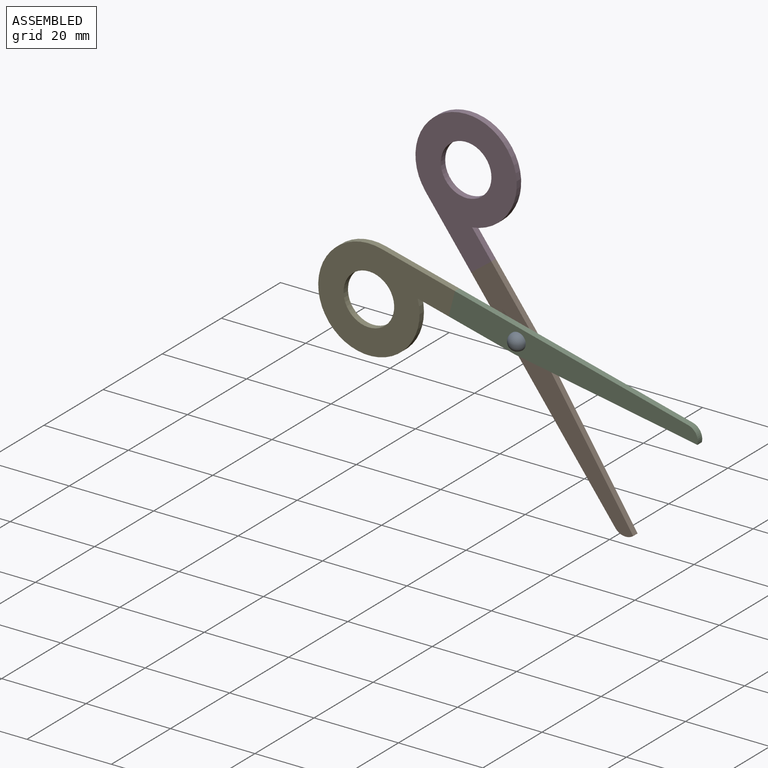
[diagram: assembled view]
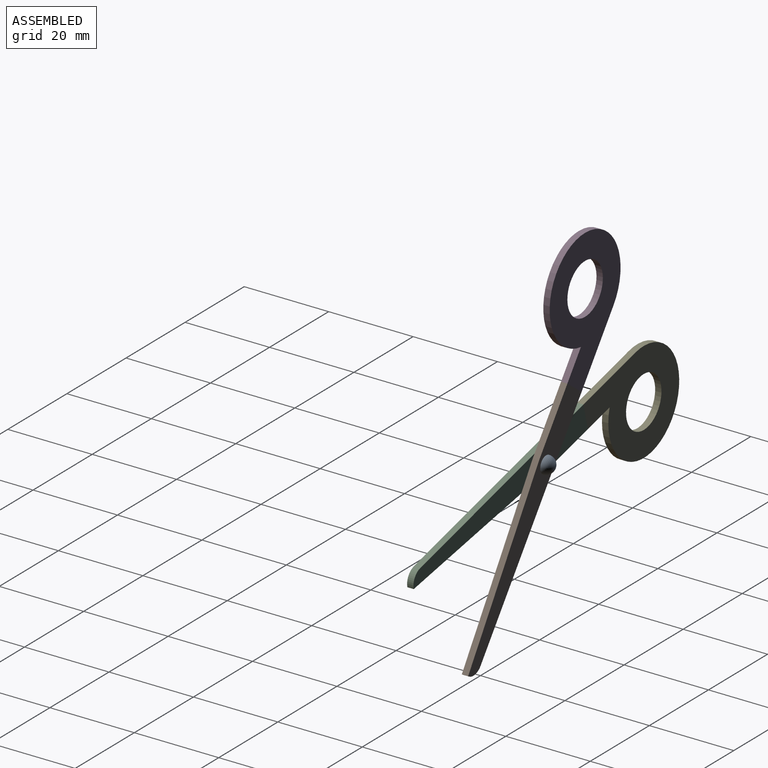
[diagram: assembled view, second angle]
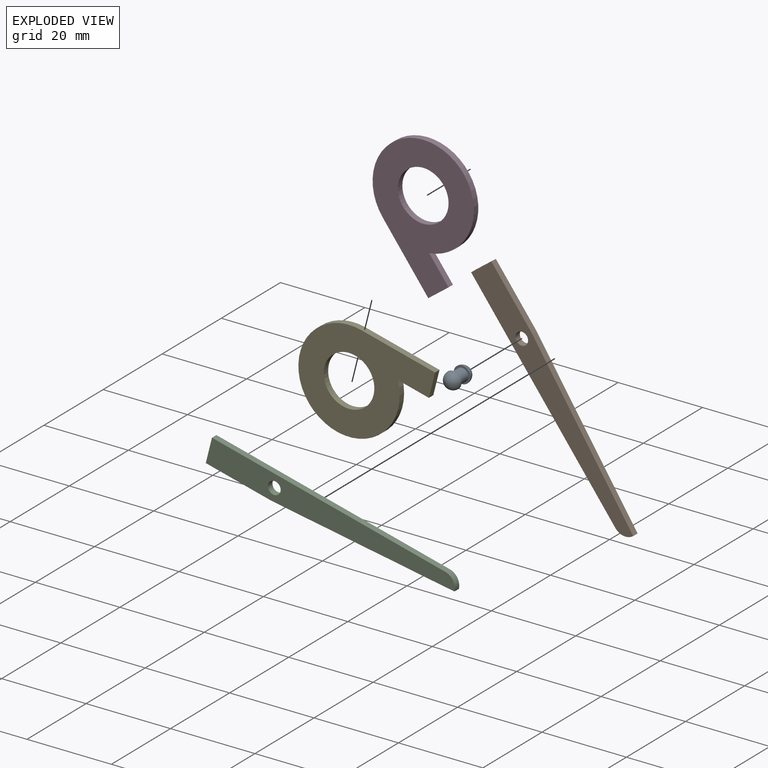
[diagram: exploded view]
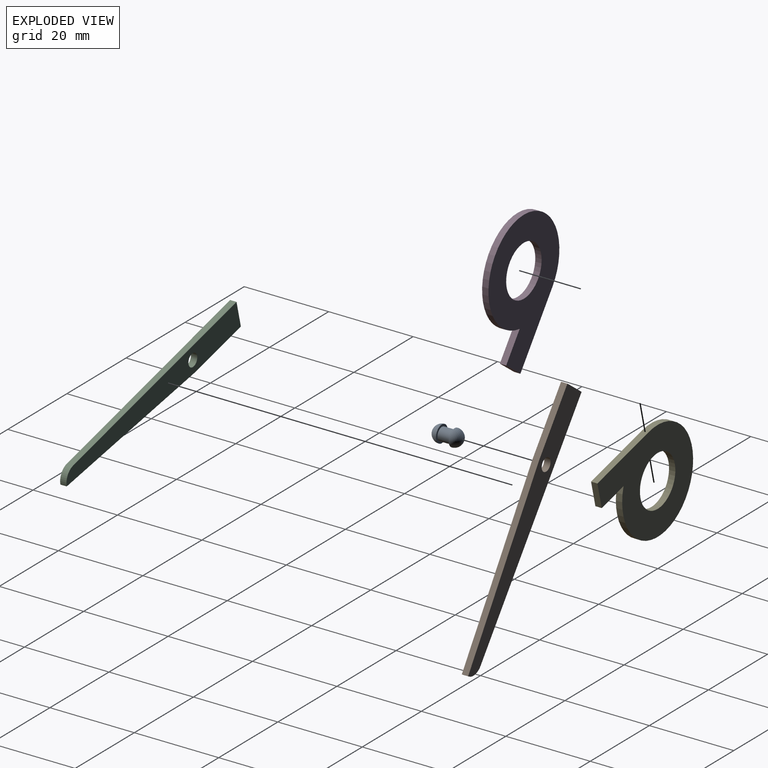
[diagram: exploded view, second angle]
ASSEMBLY  parts=5 mates=8
PART A: 5 faces, bbox 4x7x4 mm
  f0: cylinder r=1.5mm len=3mm, axis (0,1,0), area 28.3mm2, adj f2,f3
  f1: sphere r=2mm, area 25.1mm2, adj f2
  f2: plane 4x4mm, normal (0,-1,0), area 5.5mm2, adj f0,f1
  f3: plane 4x4mm, normal (0,1,0), area 5.5mm2, adj f0,f4
  f4: sphere r=2mm, area 25.1mm2, adj f3
PART B: 8 faces, bbox 60x1.5x6 mm
  f0: plane 57x1.5mm, normal (0,0,-1), area 85.5mm2, adj f1,f5,f6,f7
  f1: cylinder r=3mm len=3mm, axis (0,1,0), area 7.1mm2, adj f0,f2,f6,f7
  f2: plane 44x3mm, normal (0.07,0,1), area 66.2mm2, adj f1,f3,f6,f7
  f3: plane 16x1.5mm, normal (0,0,1), area 24mm2, adj f2,f5,f6,f7
  f4: cylinder r=1.5mm len=3mm, axis (0,1,0), area 14.1mm2, adj f6,f7
  f5: plane 6x1.5mm, normal (-1,0,0), area 9mm2, adj f0,f3,f6,f7
  f6: plane 60x6mm, normal (0,-1,0), area 285mm2, adj f0,f1,f2,f3,f4,f5
  f7: plane 60x6mm, normal (0,1,0), area 285mm2, adj f0,f1,f2,f3,f4,f5
PART C: same geometry as B
PART D: 7 faces, bbox 30x1.5x24 mm
  f0: plane 7.61x1.5mm, normal (0,0,1), area 11.4mm2, adj f1,f3,f5,f6
  f1: cylinder r=12mm len=24mm, axis (0,1,0), area 94.2mm2, adj f0,f2,f5,f6
  f2: plane 18x1.5mm, normal (0,0,-1), area 27mm2, adj f1,f3,f5,f6
  f3: plane 6x1.5mm, normal (1,0,0), area 9mm2, adj f0,f2,f5,f6
  f4: cylinder r=6mm len=12mm, axis (0,1,0), area 56.5mm2, adj f5,f6
  f5: plane 30x24mm, normal (0,-1,0), area 403.1mm2, adj f0,f1,f2,f3,f4
  f6: plane 30x24mm, normal (0,1,0), area 403.1mm2, adj f0,f1,f2,f3,f4
PART E: same geometry as D
PLACE A t=(-0.57,1.16,-0.02)mm fixed
PLACE B rot(axis=(0,1,0),53.2deg) t=(-0.57,1.16,-0.02)mm
PLACE C rot(axis=(-0.99,0,0.12),180deg) t=(-0.57,-1.84,-0.02)mm
PLACE D rot(axis=(0,1,0),53.2deg) t=(-13.75,1.16,32.58)mm
PLACE E rot(axis=(-0.99,0,0.12),180deg) t=(-35.74,-1.84,-0.44)mm
MATE planar C.f0 <-> E.f2  axis (0.24,0,0.97) through (-15.35,-0.34,6.8)mm
MATE planar C.f5 <-> E.f3  axis (-0.97,0,0.24) through (-16.08,-1.09,3.89)mm
MATE planar D.f5 <-> B.f6  axis (0,-1,0) through (-12.32,-0.34,20.67)mm
MATE planar D.f3 <-> B.f5  axis (0.6,0,-0.8) through (-10.16,0.41,12.78)mm
MATE planar D.f2 <-> B.f0  axis (-0.8,0,-0.6) through (-17.96,0.41,18.19)mm
MATE planar B.f6 <-> C.f6  axis (0,-1,0) through (5.43,-0.34,-8.77)mm
MATE revolute C.f4 <-> A.f0  axis (0,-1,0) through (-0.57,-1.84,-0.02)mm
MATE revolute B.f4 <-> A.f0  axis (0,-1,0) through (-0.57,-0.34,-0.02)mm
